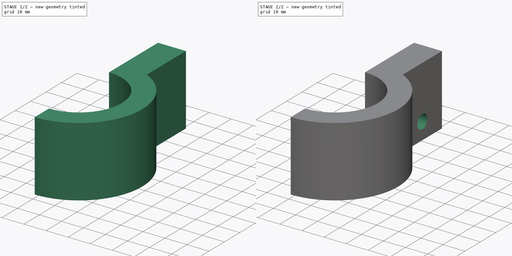
[diagram: build sequence overview — one tinted view per stage of 2, left to right]
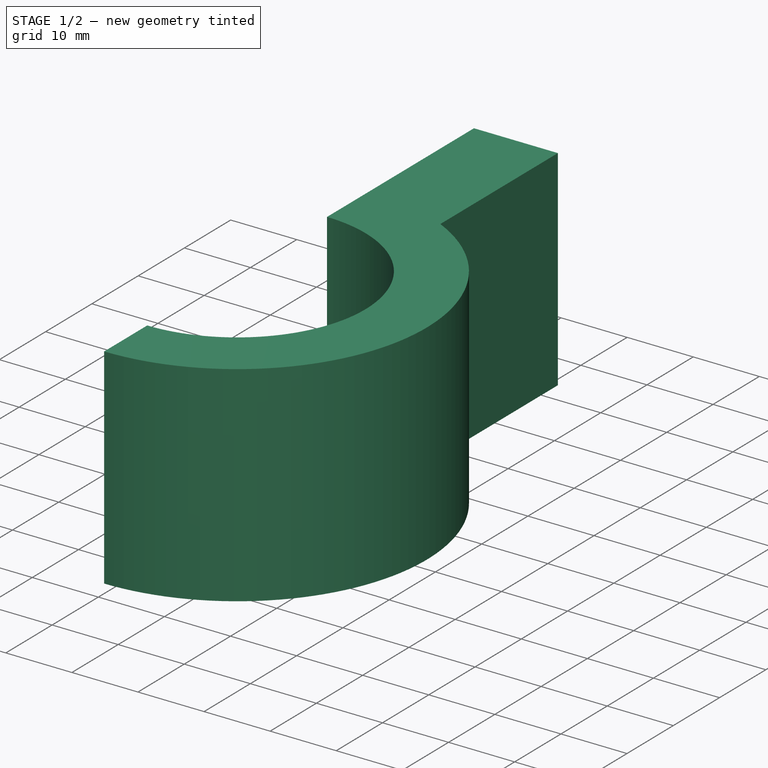
[diagram: stage 1 of 2 — iso view after this stage's code; geometry added in this stage tinted green]
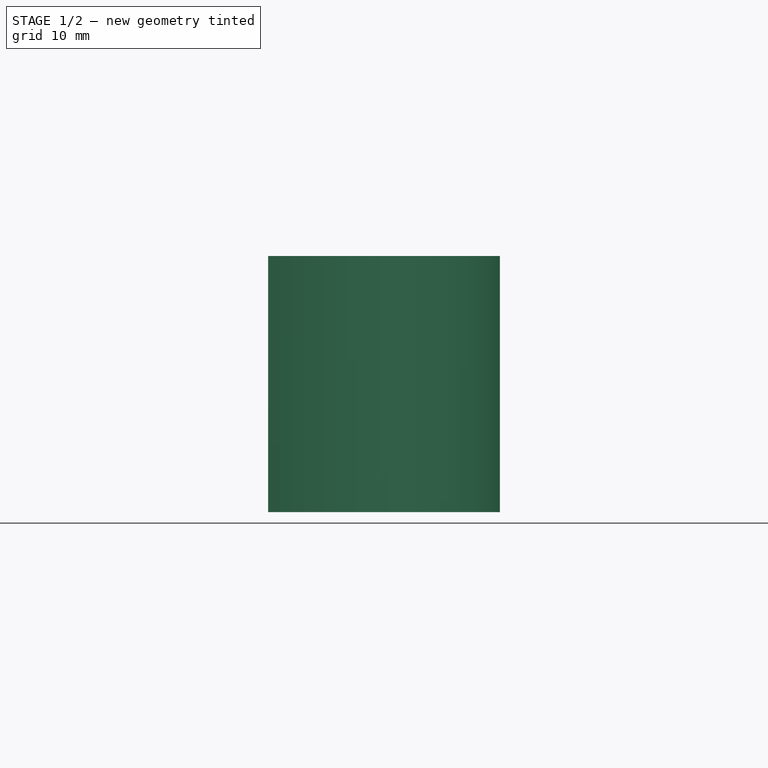
[diagram: stage 1 of 2 — front view after this stage's code; geometry added in this stage tinted green]
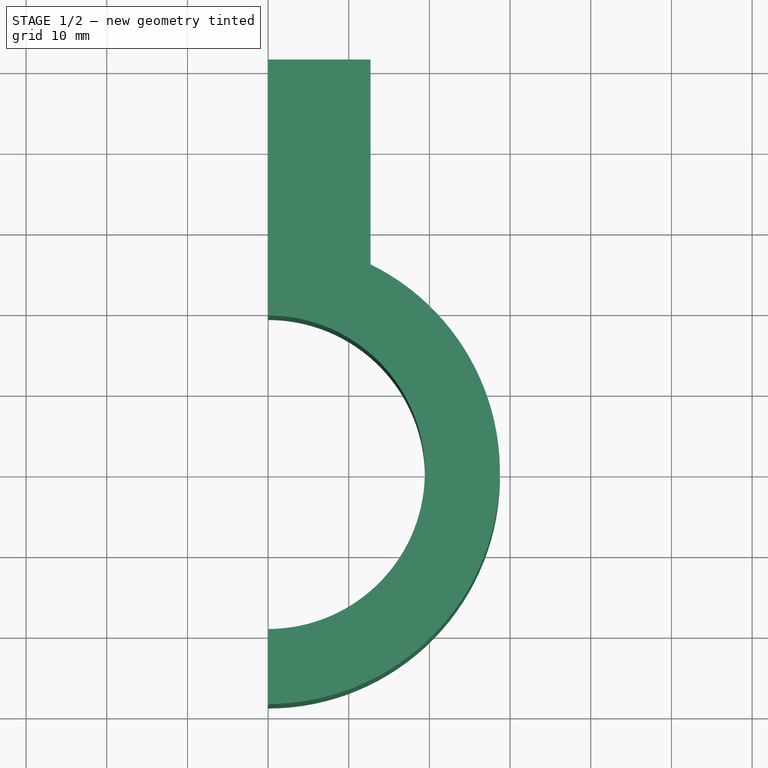
[diagram: stage 1 of 2 — top view after this stage's code; geometry added in this stage tinted green]
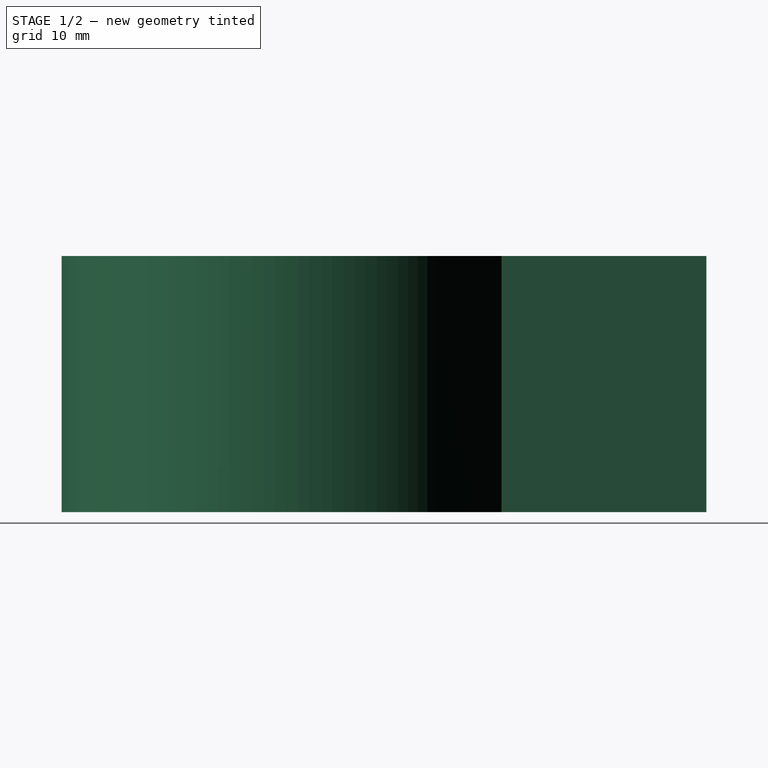
[diagram: stage 1 of 2 — right view after this stage's code; geometry added in this stage tinted green]
FCSTD DOCUMENT  (FreeCAD 0.20R29410 (Git))
Label: blower mounts
License: All rights reserved
LicenseURL: http://en.wikipedia.org/wiki/All_rights_reserved
objects: Sketcher::SketchObject×2, PartDesign::Pad×1, PartDesign::Pocket×1, PartDesign::Body×1
note: 7 computed .brp shape members not serialized (recipe doc carries the construction recipe); baked Part::Feature solids carry a one-line shape summary decoded from their .brp

FEATURE [Sketcher::SketchObject] Sketch
  FullyConstrained = true
  MapMode = 5
  Support = -> [XY_Plane]
  sketch-geometry (6):
    g0: LineSegment StartX=0 StartY=51.181 StartZ=0 EndX=12.7 EndY=51.181 EndZ=0
    g1: LineSegment StartX=12.7 StartY=51.181 StartZ=0 EndX=12.7 EndY=25.781 EndZ=0
    g2: ArcOfCircle CenterX=0 CenterY=0 CenterZ=0 NormalX=0 NormalY=0 NormalZ=1 AngleXU=0 Radius=28.7393 StartAngle=4.71239 EndAngle=7.39626
    g3: ArcOfCircle CenterX=0 CenterY=0 CenterZ=0 NormalX=0 NormalY=0 NormalZ=1 AngleXU=0 Radius=19.431 StartAngle=4.71239 EndAngle=7.85398
    g4: LineSegment StartX=0 StartY=-19.431 StartZ=0 EndX=0 EndY=-28.7393 EndZ=0
    g5: LineSegment StartX=0 StartY=51.181 StartZ=0 EndX=0 EndY=19.431 EndZ=0
  constraints (18):
    c: PointOnObject(g0,g-2)
    c: Horizontal(g0)
    c: PointOnObject(g2,g-2)
    c: Coincident(g1,g0)
    c: Vertical(g1)
    c: Coincident(g2,g-1)
    c: Coincident(g2,g1)
    c: Coincident(g3,g2)
    c: Coincident(g4,g3)
    c: Coincident(g4,g2)
    c: Vertical(g4)
    c: PointOnObject(g3,g-2)
    c: Coincident(g5,g0)
    c: Coincident(g5,g3)
    c: DistanceY(g3,g1) = 6.35
    c: DistanceX(g0,g0) = 12.7
    c: DistanceY(g1,g0) = 25.4
    c: Diameter(g3) = 38.862
FEATURE [PartDesign::Pad] Pad
  Direction = (0,0,1)
  Length = 31.75
  Length2 = 10
  Profile = -> Sketch
  ReferenceAxis = -> Sketch [N_Axis]
  Type = 0
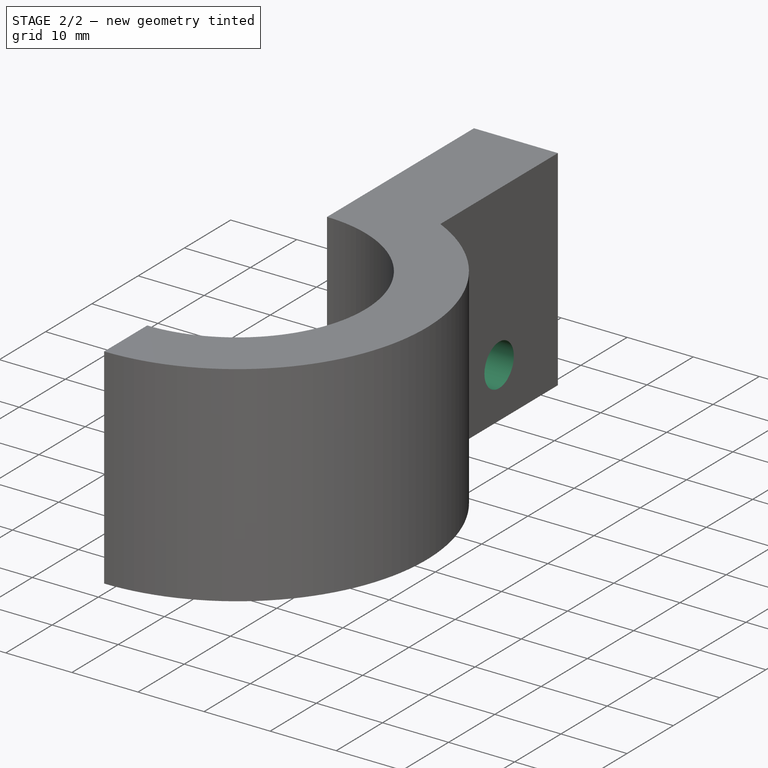
[diagram: stage 2 of 2 — iso view after this stage's code; geometry added in this stage tinted green]
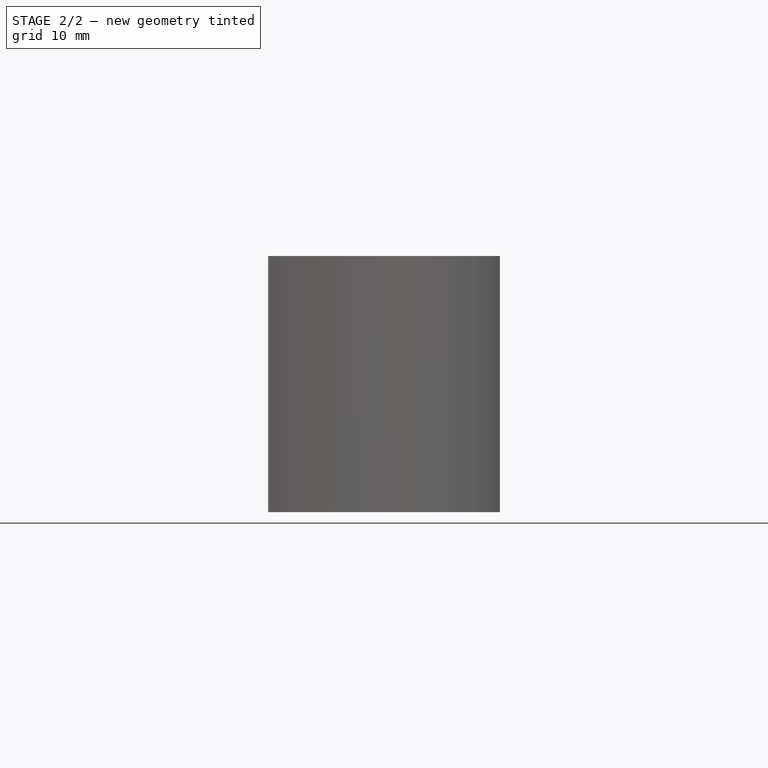
[diagram: stage 2 of 2 — front view after this stage's code; geometry added in this stage tinted green]
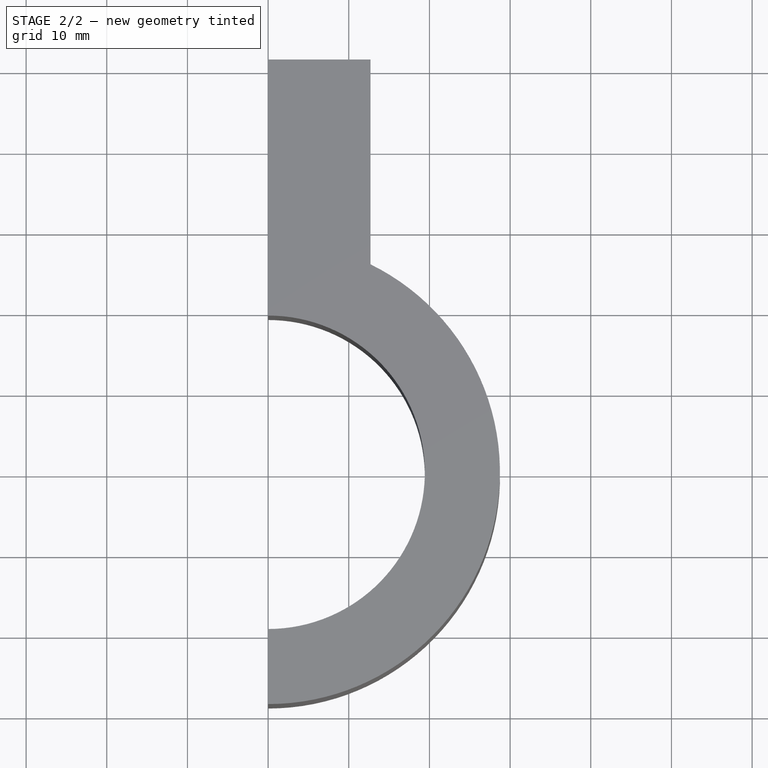
[diagram: stage 2 of 2 — top view after this stage's code; geometry added in this stage tinted green]
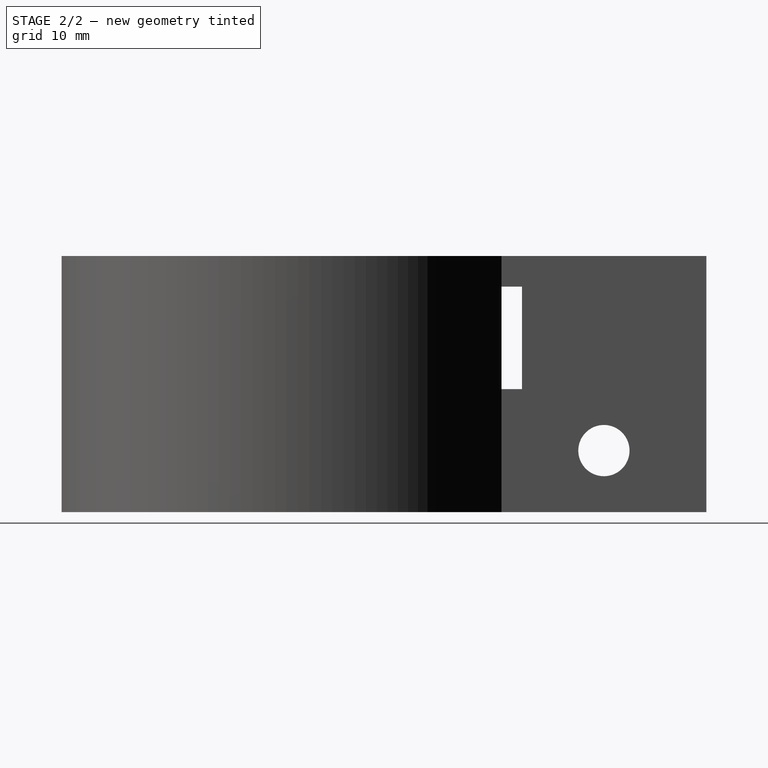
[diagram: stage 2 of 2 — right view after this stage's code; geometry added in this stage tinted green]
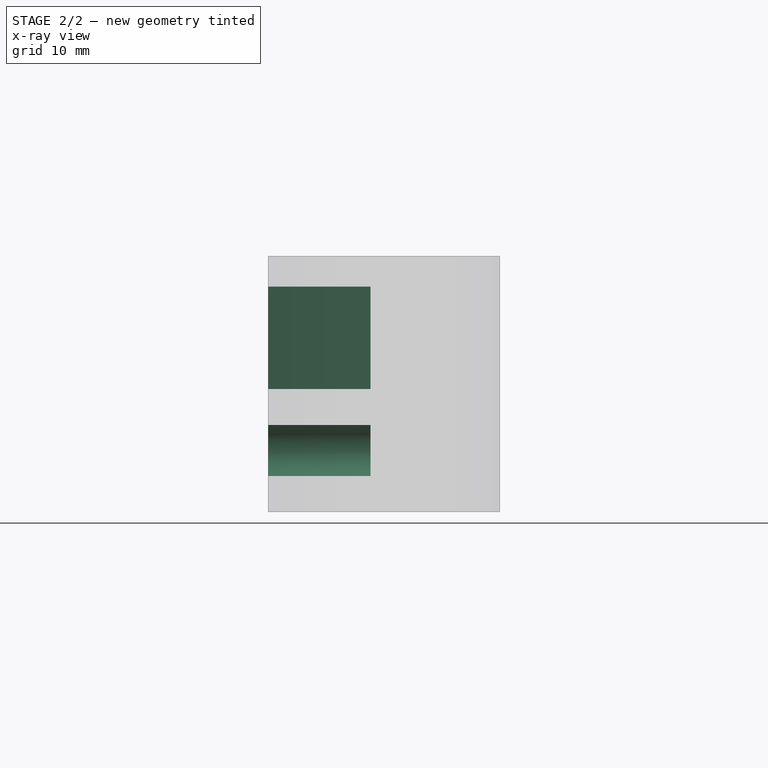
[diagram: stage 2 of 2 — x-ray composite at the front view; earlier geometry ghosted, this stage's added geometry solid]
FEATURE [Sketcher::SketchObject] Sketch001
  ExternalGeometry = -> [Pad]
  FullyConstrained = true
  MapMode = 5
  Placement = pos=(12.7,0,0) rot=(0.57735,0.57735,0.57735;2.0944rad)
  Support = -> [Pad]
  sketch-geometry (9):
    g0: LineSegment StartX=25.781 StartY=0 StartZ=0 EndX=38.481 EndY=7.62 EndZ=0
    g1: LineSegment StartX=51.181 StartY=0 StartZ=0 EndX=38.481 EndY=7.62 EndZ=0
    g2: LineSegment StartX=25.781 StartY=27.94 StartZ=0 EndX=25.781 EndY=15.24 EndZ=0
    g3: LineSegment StartX=25.781 StartY=15.24 StartZ=0 EndX=28.321 EndY=15.24 EndZ=0
    g4: LineSegment StartX=28.321 StartY=15.24 StartZ=0 EndX=28.321 EndY=27.94 EndZ=0
    g5: LineSegment StartX=28.321 StartY=27.94 StartZ=0 EndX=25.781 EndY=27.94 EndZ=0
    g6: GeomPoint X=27.051 Y=21.59 Z=0
    g7: LineSegment StartX=25.781 StartY=31.75 StartZ=0 EndX=25.781 EndY=0 EndZ=0
    g8: Circle CenterX=38.481 CenterY=7.62 CenterZ=0 NormalX=0 NormalY=0 NormalZ=1 AngleXU=0 Radius=3.175
  constraints (22):
    c: Coincident(g0,g-4)
    c: Coincident(g1,g-4)
    c: Coincident(g1,g0)
    c: Equal(g1,g0)
    c: DistanceY(g1,g0) = 7.62
    c: Coincident(g2,g3)
    c: Coincident(g3,g4)
    c: Coincident(g4,g5)
    c: Coincident(g5,g2)
    c: Horizontal(g3)
    c: Horizontal(g5)
    c: Vertical(g2)
    c: Vertical(g4)
    c: Symmetric(g3,g2,g6)
    c: DistanceY(g3,g4) = 12.7
    c: DistanceX(g2,g3) = 2.54
    c: Coincident(g7,g-3)
    c: Coincident(g7,g0)
    c: PointOnObject(g2,g7)
    c: Coincident(g8,g0)
    c: Diameter(g8) = 6.35
    c: DistanceY(g8,g3) = 7.62
FEATURE [PartDesign::Pocket] Pocket
  BaseFeature = -> Pad
  Direction = (-1,0,0)
  Length = 5
  Length2 = 5
  Profile = -> Sketch001
  ReferenceAxis = -> Sketch001 [N_Axis]
  Type = 1
FEATURE [PartDesign::Body] Body
  Group = -> [Sketch,Pad,Sketch001,Pocket]
  Origin = -> Origin
  Tip = -> Pocket
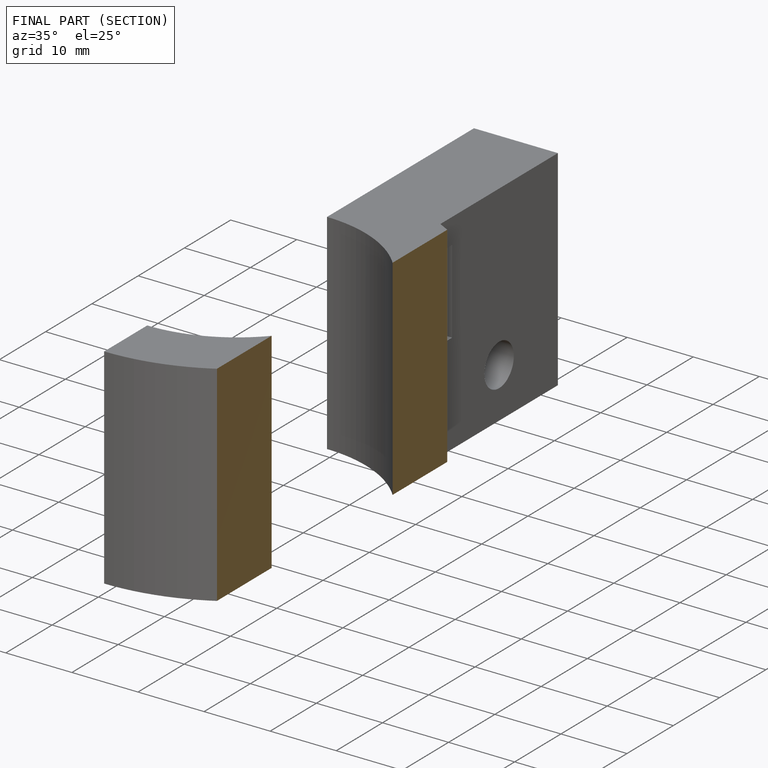
[diagram: finished part — half-section view (interior)]
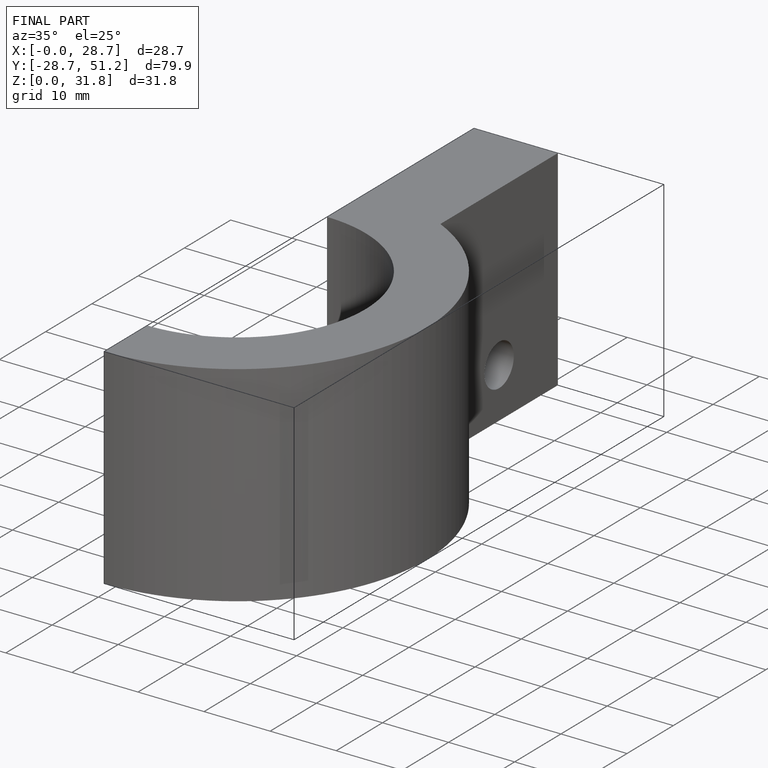
[diagram: finished part — iso view with bounding-box wireframe]
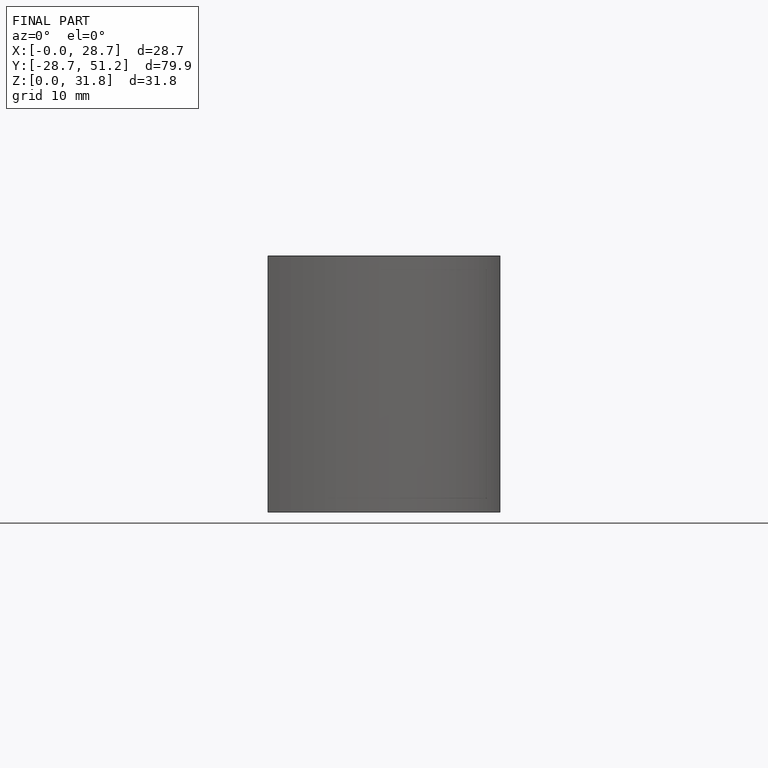
[diagram: finished part — front view with bounding-box wireframe]
